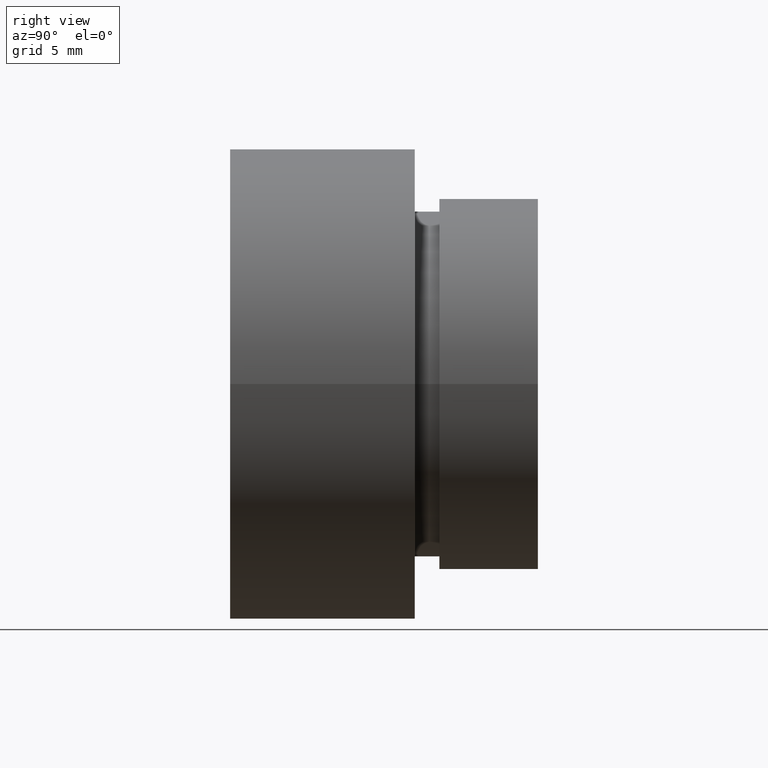
[diagram: clean part render]
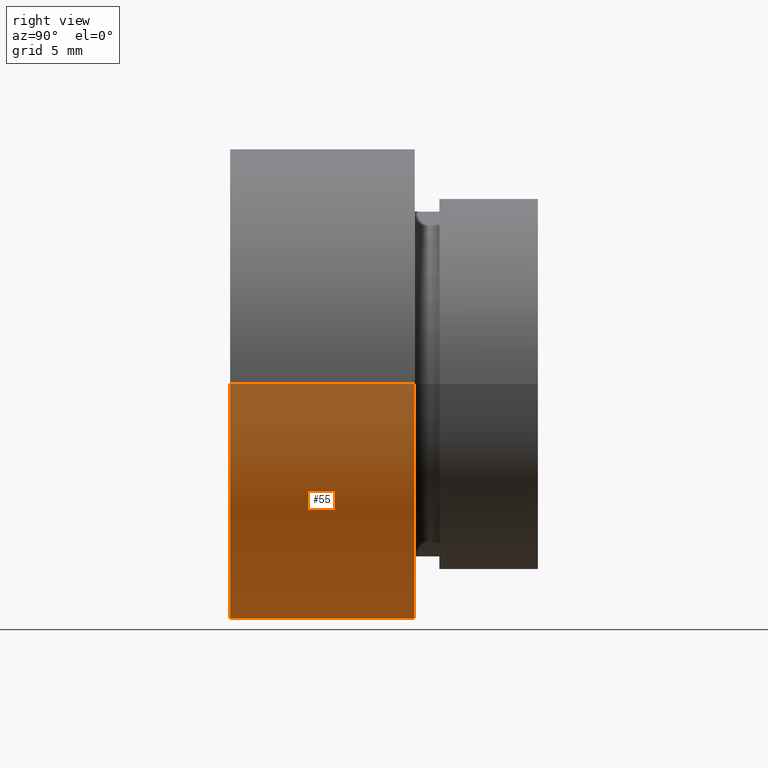
[diagram: same view with one face highlighted and labeled with its STEP entity id]
A machine part, right view. The second image highlights one B-rep face of the part: STEP entity #55.
In plain terms, the highlighted cylindrical surface (partial cylindrical patch) has radius 9.525 mm, axis along (-0, 1, -0).
Its self-contained STEP definition (entity closure, byte-faithful):
#1 = EDGE_CURVE ( 'NONE', #377, #497, #611, .T. ) ;
#3 = CYLINDRICAL_SURFACE ( 'NONE', #606, 9.525000000000002100 ) ;
#19 = DIRECTION ( 'NONE',  ( -1.000000000000000000, 0.0000000000000000000, 0.0000000000000000000 ) ) ;
#31 = CARTESIAN_POINT ( 'NONE',  ( 9.525000000000005700, 1.166476076187852400E-015, 1.166476076187854400E-015 ) ) ;
#55 = ADVANCED_FACE ( 'NONE', ( #177 ), #3, .T. ) ;
#140 = CARTESIAN_POINT ( 'NONE',  ( -9.524999999999998600, 7.499999999999997300, 0.0000000000000000000 ) ) ;
#175 = DIRECTION ( 'NONE',  ( -1.224646799147351000E-016, 1.000000000000000000, -0.0000000000000000000 ) ) ;
#177 = FACE_OUTER_BOUND ( 'NONE', #482, .T. ) ;
#181 = AXIS2_PLACEMENT_3D ( 'NONE', #447, #496, #217 ) ;
#186 = EDGE_CURVE ( 'NONE', #316, #587, #312, .T. ) ;
#192 = VECTOR ( 'NONE', #392, 1000.000000000000000 ) ;
#206 = CARTESIAN_POINT ( 'NONE',  ( 0.0000000000000000000, 16.88601823708207700, 0.0000000000000000000 ) ) ;
#217 = DIRECTION ( 'NONE',  ( -1.000000000000000000, -1.224646799147351200E-016, 0.0000000000000000000 ) ) ;
#238 = CIRCLE ( 'NONE', #181, 9.525000000000003900 ) ;
#291 = CARTESIAN_POINT ( 'NONE',  ( 9.525000000000002100, 16.88601823708207700, 1.166476076187854200E-015 ) ) ;
#307 = ORIENTED_EDGE ( 'NONE', *, *, #186, .T. ) ;
#312 = LINE ( 'NONE', #393, #192 ) ;
#316 = VERTEX_POINT ( 'NONE', #601 ) ;
#353 = EDGE_CURVE ( 'NONE', #377, #316, #238, .T. ) ;
#364 = CARTESIAN_POINT ( 'NONE',  ( 1.149455719078122700E-015, 7.499999999999998200, 0.0000000000000000000 ) ) ;
#370 = DIRECTION ( 'NONE',  ( -1.000000000000000000, -9.106159978880877400E-017, 0.0000000000000000000 ) ) ;
#377 = VERTEX_POINT ( 'NONE', #31 ) ;
#392 = DIRECTION ( 'NONE',  ( -1.224646799147351000E-016, 1.000000000000000000, -0.0000000000000000000 ) ) ;
#393 = CARTESIAN_POINT ( 'NONE',  ( -9.525000000000002100, 16.88601823708207700, 0.0000000000000000000 ) ) ;
#410 = CARTESIAN_POINT ( 'NONE',  ( 9.525000000000002100, 7.499999999999999100, 1.166476076187854200E-015 ) ) ;
#445 = ORIENTED_EDGE ( 'NONE', *, *, #473, .F. ) ;
#447 = CARTESIAN_POINT ( 'NONE',  ( 2.067940818438636100E-015, 0.0000000000000000000, 0.0000000000000000000 ) ) ;
#462 = AXIS2_PLACEMENT_3D ( 'NONE', #364, #175, #370 ) ;
#471 = DIRECTION ( 'NONE',  ( -1.224646799147351000E-016, 1.000000000000000000, -0.0000000000000000000 ) ) ;
#473 = EDGE_CURVE ( 'NONE', #497, #587, #534, .T. ) ;
#482 = EDGE_LOOP ( 'NONE', ( #613, #525, #307, #445 ) ) ;
#496 = DIRECTION ( 'NONE',  ( -1.224646799147351000E-016, 1.000000000000000000, -0.0000000000000000000 ) ) ;
#497 = VERTEX_POINT ( 'NONE', #410 ) ;
#525 = ORIENTED_EDGE ( 'NONE', *, *, #353, .T. ) ;
#531 = DIRECTION ( 'NONE',  ( -1.224646799147351000E-016, 1.000000000000000000, -0.0000000000000000000 ) ) ;
#534 = CIRCLE ( 'NONE', #462, 9.525000000000000400 ) ;
#544 = VECTOR ( 'NONE', #471, 1000.000000000000000 ) ;
#587 = VERTEX_POINT ( 'NONE', #140 ) ;
#601 = CARTESIAN_POINT ( 'NONE',  ( -9.525000000000002100, -1.166476076187852400E-015, 0.0000000000000000000 ) ) ;
#606 = AXIS2_PLACEMENT_3D ( 'NONE', #206, #531, #19 ) ;
#611 = LINE ( 'NONE', #291, #544 ) ;
#613 = ORIENTED_EDGE ( 'NONE', *, *, #1, .F. ) ;